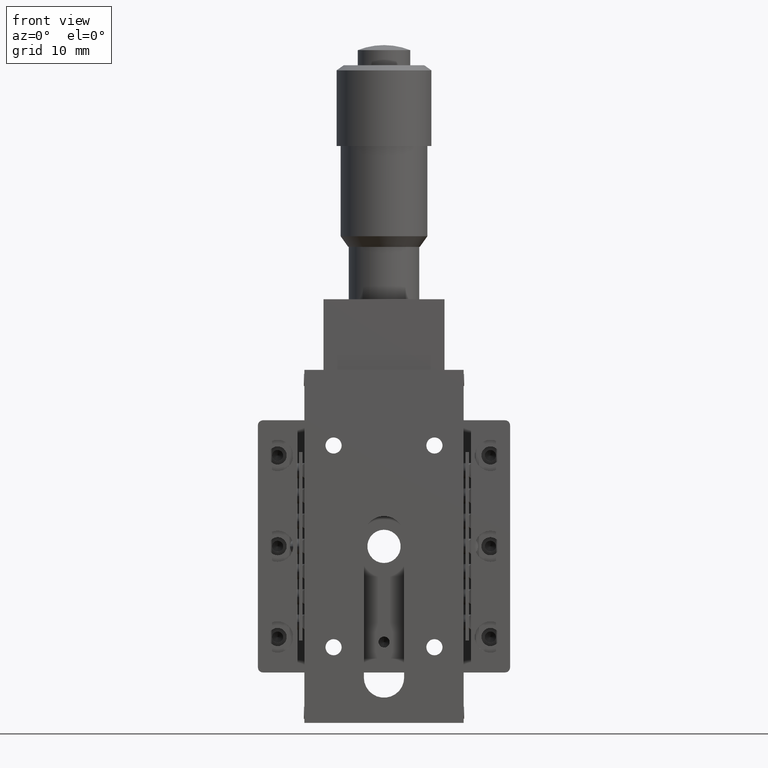
[diagram: clean part render]
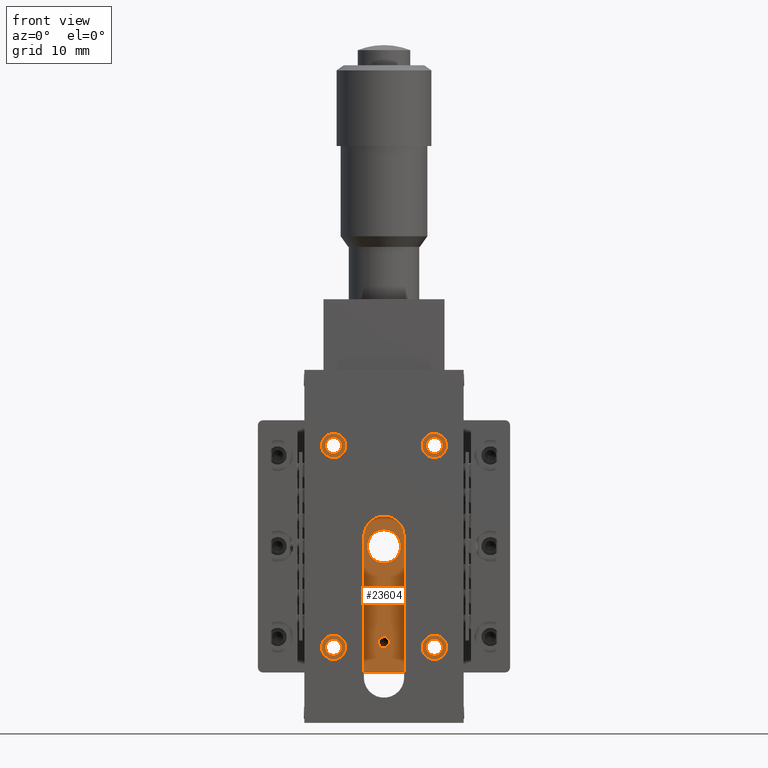
[diagram: same view with one face highlighted and labeled with its STEP entity id]
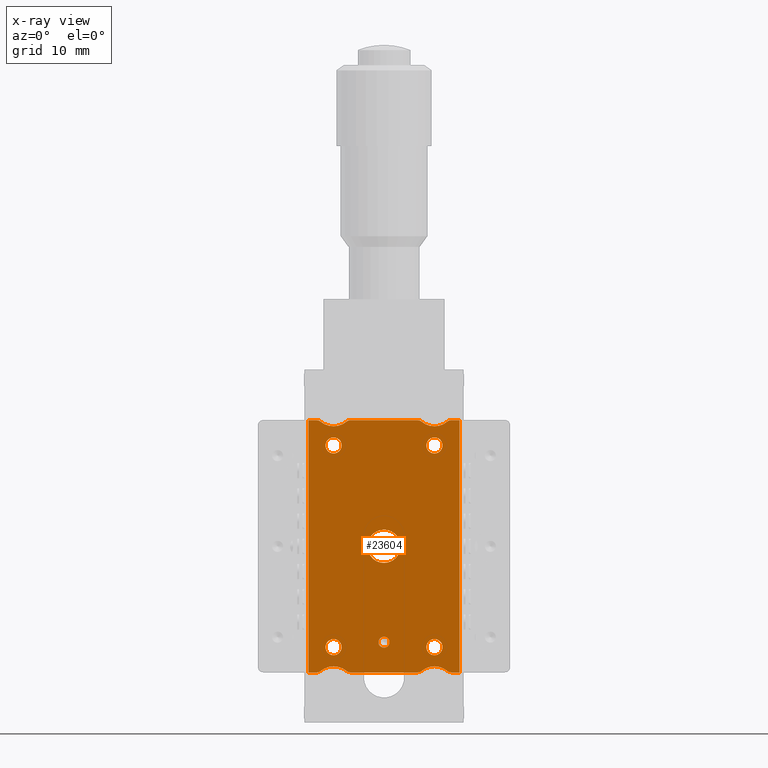
[diagram: x-ray of the same camera — body ghosted, the highlighted face saturated]
A machine part, front view. The second image highlights one B-rep face of the part: STEP entity #23604.
The next image is the same camera in x-ray: the body ghosted, the highlighted face saturated — about 0% of this face is hidden behind the body in this view.
In plain terms, the highlighted planar face has unit normal (-0, 1, 0).
Its self-contained STEP definition (entity closure, byte-faithful):
#22 = VERTEX_POINT ( 'NONE', #24181 ) ;
#49 = EDGE_CURVE ( 'NONE', #6690, #9090, #11106, .T. ) ;
#52 = DIRECTION ( 'NONE',  ( 6.812403650445844800E-018, -1.000000000000000000, -7.006492321624085400E-046 ) ) ;
#67 = DIRECTION ( 'NONE',  ( 1.000000000000000000, 0.0000000000000000000, 0.0000000000000000000 ) ) ;
#151 = CARTESIAN_POINT ( 'NONE',  ( 5.000000000000870400, 4.300000000000021100, -10.00000000000000000 ) ) ;
#404 = ORIENTED_EDGE ( 'NONE', *, *, #29183, .T. ) ;
#408 = CIRCLE ( 'NONE', #25599, 0.7999999999999933800 ) ;
#416 = VERTEX_POINT ( 'NONE', #444 ) ;
#444 = CARTESIAN_POINT ( 'NONE',  ( -7.499999999999129600, 4.300000000000021100, -12.50000000000000000 ) ) ;
#646 = CIRCLE ( 'NONE', #25027, 0.7999999999999933800 ) ;
#813 = ORIENTED_EDGE ( 'NONE', *, *, #14696, .T. ) ;
#849 = CARTESIAN_POINT ( 'NONE',  ( 8.668351572562253300E-013, 4.300000000000018500, -1.649999999999998100 ) ) ;
#1001 = VERTEX_POINT ( 'NONE', #29220 ) ;
#1017 = VECTOR ( 'NONE', #33290, 1000.000000000000000 ) ;
#1077 = LINE ( 'NONE', #5327, #12166 ) ;
#1141 = CARTESIAN_POINT ( 'NONE',  ( 6.624807680928059400, 4.300000000000021100, 12.50000000000000000 ) ) ;
#1350 = PLANE ( 'NONE',  #15833 ) ;
#1379 = EDGE_CURVE ( 'NONE', #14919, #13713, #27646, .T. ) ;
#1444 = VECTOR ( 'NONE', #5156, 1000.000000000000000 ) ;
#1618 = DIRECTION ( 'NONE',  ( -1.000000000000000000, 0.0000000000000000000, 0.0000000000000000000 ) ) ;
#1698 = VERTEX_POINT ( 'NONE', #24108 ) ;
#1723 = VERTEX_POINT ( 'NONE', #30539 ) ;
#1804 = ORIENTED_EDGE ( 'NONE', *, *, #12810, .T. ) ;
#1886 = EDGE_LOOP ( 'NONE', ( #18322, #17220 ) ) ;
#1904 = DIRECTION ( 'NONE',  ( 1.000000000000000000, 0.0000000000000000000, 0.0000000000000000000 ) ) ;
#1950 = EDGE_CURVE ( 'NONE', #1723, #26757, #27609, .T. ) ;
#1998 = AXIS2_PLACEMENT_3D ( 'NONE', #15124, #20478, #22932 ) ;
#2037 = CIRCLE ( 'NONE', #30269, 0.5000000000000000000 ) ;
#2616 = AXIS2_PLACEMENT_3D ( 'NONE', #22467, #9190, #6204 ) ;
#2690 = DIRECTION ( 'NONE',  ( 1.000000000000000000, 0.0000000000000000000, 0.0000000000000000000 ) ) ;
#2694 = AXIS2_PLACEMENT_3D ( 'NONE', #28945, #4245, #28614 ) ;
#2722 = CARTESIAN_POINT ( 'NONE',  ( -3.375192319071940600, 4.300000000000021100, 12.00000000000000000 ) ) ;
#2745 = EDGE_LOOP ( 'NONE', ( #14509, #30164 ) ) ;
#2777 = LINE ( 'NONE', #10962, #26567 ) ;
#2948 = CARTESIAN_POINT ( 'NONE',  ( 5.000000000000870400, 4.300000000000021100, 10.00000000000000000 ) ) ;
#3067 = AXIS2_PLACEMENT_3D ( 'NONE', #13649, #52, #2690 ) ;
#3420 = CARTESIAN_POINT ( 'NONE',  ( -4.999999999999130500, 4.300000000000021100, 10.79999999999999400 ) ) ;
#3421 = CARTESIAN_POINT ( 'NONE',  ( -7.499999999999129600, 4.300000000000021100, 12.50000000000000000 ) ) ;
#3568 = AXIS2_PLACEMENT_3D ( 'NONE', #2722, #32787, #8220 ) ;
#3687 = DIRECTION ( 'NONE',  ( 1.000000000000000000, 0.0000000000000000000, 0.0000000000000000000 ) ) ;
#3727 = DIRECTION ( 'NONE',  ( -6.812403650445846400E-018, 1.000000000000000000, 7.006492321624085400E-046 ) ) ;
#4138 = CARTESIAN_POINT ( 'NONE',  ( 5.000000000000870400, 4.300000000000021100, 10.00000000000000000 ) ) ;
#4241 = AXIS2_PLACEMENT_3D ( 'NONE', #34054, #31407, #17797 ) ;
#4245 = DIRECTION ( 'NONE',  ( -1.224606353822329900E-016, 1.000000000000000000, 7.006492321624085400E-046 ) ) ;
#4597 = CARTESIAN_POINT ( 'NONE',  ( -7.499999999999129600, 4.300000000000021100, -12.50000000000000000 ) ) ;
#4704 = ORIENTED_EDGE ( 'NONE', *, *, #6712, .T. ) ;
#4705 = AXIS2_PLACEMENT_3D ( 'NONE', #4138, #14626, #33604 ) ;
#4720 = DIRECTION ( 'NONE',  ( -1.000000000000000000, -6.812403650445846400E-018, 8.102884476381693800E-062 ) ) ;
#4721 = EDGE_CURVE ( 'NONE', #15354, #11852, #32963, .T. ) ;
#4772 = LINE ( 'NONE', #4597, #9876 ) ;
#4887 = EDGE_CURVE ( 'NONE', #34324, #14466, #646, .T. ) ;
#5093 = EDGE_CURVE ( 'NONE', #416, #15615, #2777, .T. ) ;
#5156 = DIRECTION ( 'NONE',  ( -1.000000000000000000, -6.812403650445846400E-018, 8.102884476381693800E-062 ) ) ;
#5327 = CARTESIAN_POINT ( 'NONE',  ( -7.499999999999129600, 4.300000000000021100, 12.50000000000000000 ) ) ;
#5351 = CIRCLE ( 'NONE', #25770, 0.7999999999999933800 ) ;
#5678 = CIRCLE ( 'NONE', #2616, 0.5500000000000001600 ) ;
#5694 = DIRECTION ( 'NONE',  ( -6.812403650445846400E-018, 1.000000000000000000, 7.006492321624085400E-046 ) ) ;
#5984 = CIRCLE ( 'NONE', #8377, 0.5500000000000001600 ) ;
#6017 = CARTESIAN_POINT ( 'NONE',  ( -3.700153855257381200, 4.300000000000021100, 12.37999999999999900 ) ) ;
#6080 = ORIENTED_EDGE ( 'NONE', *, *, #32942, .F. ) ;
#6204 = DIRECTION ( 'NONE',  ( 0.0000000000000000000, 0.0000000000000000000, 1.000000000000000000 ) ) ;
#6646 = DIRECTION ( 'NONE',  ( 1.000000000000000000, 0.0000000000000000000, 0.0000000000000000000 ) ) ;
#6690 = VERTEX_POINT ( 'NONE', #12490 ) ;
#6693 = DIRECTION ( 'NONE',  ( 6.812403650445846400E-018, -1.000000000000000000, -7.006492321624085400E-046 ) ) ;
#6712 = EDGE_CURVE ( 'NONE', #14466, #34324, #25551, .T. ) ;
#6775 = DIRECTION ( 'NONE',  ( 6.812403650445846400E-018, -1.000000000000000000, -7.006492321624085400E-046 ) ) ;
#6790 = CARTESIAN_POINT ( 'NONE',  ( 6.299846144742624600, 4.300000000000021100, 12.38000000000000100 ) ) ;
#7027 = EDGE_CURVE ( 'NONE', #17244, #21305, #408, .T. ) ;
#7368 = CARTESIAN_POINT ( 'NONE',  ( 5.000000000000869500, 4.300000000000021100, 13.89999999999999900 ) ) ;
#7603 = CARTESIAN_POINT ( 'NONE',  ( -4.999999999999123400, 4.300000000000021100, -10.00000000000000000 ) ) ;
#7826 = CARTESIAN_POINT ( 'NONE',  ( -4.999999999999130500, 4.300000000000021100, -10.79999999999999400 ) ) ;
#7880 = CARTESIAN_POINT ( 'NONE',  ( -7.499999999999129600, 4.300000000000021100, 12.50000000000000000 ) ) ;
#8220 = DIRECTION ( 'NONE',  ( 1.000000000000000000, 0.0000000000000000000, 0.0000000000000000000 ) ) ;
#8377 = AXIS2_PLACEMENT_3D ( 'NONE', #35070, #10594, #26970 ) ;
#8746 = FACE_OUTER_BOUND ( 'NONE', #9017, .T. ) ;
#9017 = EDGE_LOOP ( 'NONE', ( #6080, #404, #24154, #17919, #26206, #21950, #13528, #12252, #26246, #11017, #21286, #34145, #1804, #17992, #26923, #9395, #16943, #813, #34624, #9583 ) ) ;
#9090 = VERTEX_POINT ( 'NONE', #6017 ) ;
#9158 = LINE ( 'NONE', #17391, #1017 ) ;
#9190 = DIRECTION ( 'NONE',  ( 1.224606353822329900E-016, -1.000000000000000000, -7.006492321624085400E-046 ) ) ;
#9309 = AXIS2_PLACEMENT_3D ( 'NONE', #151, #22047, #16748 ) ;
#9395 = ORIENTED_EDGE ( 'NONE', *, *, #12130, .T. ) ;
#9410 = CARTESIAN_POINT ( 'NONE',  ( 3.375192319073669900, 4.300000000000021100, 12.00000000000000000 ) ) ;
#9467 = VERTEX_POINT ( 'NONE', #17062 ) ;
#9583 = ORIENTED_EDGE ( 'NONE', *, *, #31018, .T. ) ;
#9725 = CARTESIAN_POINT ( 'NONE',  ( 3.375192319073673500, 4.300000000000021100, -12.00000000000000000 ) ) ;
#9876 = VECTOR ( 'NONE', #4720, 1000.000000000000000 ) ;
#10043 = DIRECTION ( 'NONE',  ( -6.812403650445846400E-018, 1.000000000000000000, 7.006492321624085400E-046 ) ) ;
#10185 = DIRECTION ( 'NONE',  ( -6.812403650445846400E-018, 1.000000000000000000, 7.006492321624085400E-046 ) ) ;
#10239 = VERTEX_POINT ( 'NONE', #26885 ) ;
#10434 = FACE_BOUND ( 'NONE', #17909, .T. ) ;
#10451 = AXIS2_PLACEMENT_3D ( 'NONE', #22939, #6693, #25669 ) ;
#10594 = DIRECTION ( 'NONE',  ( 1.224606353822329900E-016, -1.000000000000000000, -7.006492321624085400E-046 ) ) ;
#10962 = CARTESIAN_POINT ( 'NONE',  ( -7.499999999999129600, 4.300000000000021100, -12.50000000000000000 ) ) ;
#11017 = ORIENTED_EDGE ( 'NONE', *, *, #27463, .T. ) ;
#11106 = CIRCLE ( 'NONE', #3067, 2.000000000000000400 ) ;
#11211 = CIRCLE ( 'NONE', #2694, 1.649999999999998100 ) ;
#11258 = CARTESIAN_POINT ( 'NONE',  ( -6.624807680926319400, 4.300000000000021100, -12.00000000000000000 ) ) ;
#11451 = EDGE_CURVE ( 'NONE', #26757, #1001, #1077, .T. ) ;
#11532 = CARTESIAN_POINT ( 'NONE',  ( 8.684184128021710800E-013, 4.300000000000021100, -10.04999999999999900 ) ) ;
#11850 = EDGE_CURVE ( 'NONE', #14323, #22, #15558, .T. ) ;
#11852 = VERTEX_POINT ( 'NONE', #14664 ) ;
#12002 = VECTOR ( 'NONE', #29292, 1000.000000000000000 ) ;
#12104 = DIRECTION ( 'NONE',  ( 1.000000000000000000, 6.812403650445844800E-018, -8.102884476381695500E-062 ) ) ;
#12130 = EDGE_CURVE ( 'NONE', #15725, #22, #24860, .T. ) ;
#12166 = VECTOR ( 'NONE', #29669, 1000.000000000000000 ) ;
#12252 = ORIENTED_EDGE ( 'NONE', *, *, #1950, .T. ) ;
#12326 = DIRECTION ( 'NONE',  ( 1.000000000000000000, 0.0000000000000000000, 0.0000000000000000000 ) ) ;
#12353 = CARTESIAN_POINT ( 'NONE',  ( 8.663820462318324000E-013, 4.300000000000018500, 1.649999999999998400 ) ) ;
#12490 = CARTESIAN_POINT ( 'NONE',  ( -6.299846144740887300, 4.300000000000021100, 12.37999999999999900 ) ) ;
#12567 = EDGE_CURVE ( 'NONE', #15354, #26318, #34226, .T. ) ;
#12747 = CARTESIAN_POINT ( 'NONE',  ( -4.999999999999130500, 4.300000000000021100, 9.200000000000006400 ) ) ;
#12810 = EDGE_CURVE ( 'NONE', #1698, #15615, #9158, .T. ) ;
#12849 = LINE ( 'NONE', #23678, #12002 ) ;
#12864 = EDGE_CURVE ( 'NONE', #27866, #30324, #14673, .T. ) ;
#12965 = EDGE_LOOP ( 'NONE', ( #28830, #30304 ) ) ;
#13401 = LINE ( 'NONE', #3421, #29139 ) ;
#13523 = CIRCLE ( 'NONE', #23894, 0.7999999999999933800 ) ;
#13528 = ORIENTED_EDGE ( 'NONE', *, *, #30727, .F. ) ;
#13581 = CARTESIAN_POINT ( 'NONE',  ( -7.499999999999129600, 4.300000000000021100, -12.50000000000000000 ) ) ;
#13582 = AXIS2_PLACEMENT_3D ( 'NONE', #34749, #20643, #26067 ) ;
#13649 = CARTESIAN_POINT ( 'NONE',  ( -4.999999999999131400, 4.300000000000021100, 13.89999999999999700 ) ) ;
#13713 = VERTEX_POINT ( 'NONE', #6790 ) ;
#13992 = CARTESIAN_POINT ( 'NONE',  ( 7.500000000000871300, 4.300000000000021100, -12.50000000000000000 ) ) ;
#14078 = CIRCLE ( 'NONE', #26122, 0.7999999999999933800 ) ;
#14319 = CARTESIAN_POINT ( 'NONE',  ( 5.000000000000863300, 4.300000000000021100, -9.200000000000006400 ) ) ;
#14323 = VERTEX_POINT ( 'NONE', #28920 ) ;
#14466 = VERTEX_POINT ( 'NONE', #27610 ) ;
#14509 = ORIENTED_EDGE ( 'NONE', *, *, #17534, .T. ) ;
#14626 = DIRECTION ( 'NONE',  ( -6.812403650445846400E-018, 1.000000000000000000, 7.006492321624085400E-046 ) ) ;
#14664 = CARTESIAN_POINT ( 'NONE',  ( 7.500000000000871300, 4.300000000000021100, 12.50000000000000000 ) ) ;
#14673 = CIRCLE ( 'NONE', #25485, 1.649999999999998100 ) ;
#14696 = EDGE_CURVE ( 'NONE', #14323, #20243, #16781, .T. ) ;
#14714 = FACE_BOUND ( 'NONE', #33949, .T. ) ;
#14731 = AXIS2_PLACEMENT_3D ( 'NONE', #20273, #25798, #1904 ) ;
#14734 = DIRECTION ( 'NONE',  ( -6.812403650445844800E-018, 1.000000000000000000, 7.006492321624085400E-046 ) ) ;
#14919 = VERTEX_POINT ( 'NONE', #1141 ) ;
#15124 = CARTESIAN_POINT ( 'NONE',  ( -4.999999999999127800, 4.300000000000021100, -13.90000000000000000 ) ) ;
#15183 = CARTESIAN_POINT ( 'NONE',  ( -4.999999999999123400, 4.300000000000021100, 10.00000000000000000 ) ) ;
#15354 = VERTEX_POINT ( 'NONE', #13992 ) ;
#15558 = CIRCLE ( 'NONE', #1998, 2.000000000000000900 ) ;
#15615 = VERTEX_POINT ( 'NONE', #7880 ) ;
#15725 = VERTEX_POINT ( 'NONE', #18832 ) ;
#15833 = AXIS2_PLACEMENT_3D ( 'NONE', #28275, #14734, #12104 ) ;
#15891 = EDGE_CURVE ( 'NONE', #20111, #24451, #23650, .T. ) ;
#15912 = DIRECTION ( 'NONE',  ( 1.000000000000000000, 0.0000000000000000000, -3.469446951953614200E-015 ) ) ;
#15945 = EDGE_CURVE ( 'NONE', #9467, #20243, #4772, .T. ) ;
#16093 = DIRECTION ( 'NONE',  ( -7.507670638184694700E-062, 6.130680781421074700E-046, 1.000000000000000000 ) ) ;
#16542 = AXIS2_PLACEMENT_3D ( 'NONE', #7603, #34564, #31581 ) ;
#16652 = DIRECTION ( 'NONE',  ( -1.000000000000000000, -6.812403650445846400E-018, 8.102884476381693800E-062 ) ) ;
#16748 = DIRECTION ( 'NONE',  ( 1.000000000000000000, 0.0000000000000000000, 0.0000000000000000000 ) ) ;
#16781 = CIRCLE ( 'NONE', #21632, 0.5000000000000000000 ) ;
#16943 = ORIENTED_EDGE ( 'NONE', *, *, #11850, .F. ) ;
#17062 = CARTESIAN_POINT ( 'NONE',  ( 3.375192319073669000, 4.300000000000021100, -12.50000000000000000 ) ) ;
#17065 = CIRCLE ( 'NONE', #10451, 0.5000000000000004400 ) ;
#17108 = AXIS2_PLACEMENT_3D ( 'NONE', #11258, #18987, #27282 ) ;
#17200 = EDGE_CURVE ( 'NONE', #24451, #20111, #14078, .T. ) ;
#17220 = ORIENTED_EDGE ( 'NONE', *, *, #7027, .T. ) ;
#17244 = VERTEX_POINT ( 'NONE', #3420 ) ;
#17391 = CARTESIAN_POINT ( 'NONE',  ( -7.499999999999129600, 4.300000000000021100, 12.50000000000000000 ) ) ;
#17509 = EDGE_LOOP ( 'NONE', ( #33903, #28251 ) ) ;
#17534 = EDGE_CURVE ( 'NONE', #10239, #21981, #34888, .T. ) ;
#17548 = CARTESIAN_POINT ( 'NONE',  ( 7.500000000000871300, 4.300000000000021100, -12.50000000000000000 ) ) ;
#17694 = CIRCLE ( 'NONE', #4241, 2.000000000000000000 ) ;
#17797 = DIRECTION ( 'NONE',  ( 1.000000000000000000, 0.0000000000000000000, 0.0000000000000000000 ) ) ;
#17909 = EDGE_LOOP ( 'NONE', ( #19725, #4704 ) ) ;
#17919 = ORIENTED_EDGE ( 'NONE', *, *, #4721, .T. ) ;
#17992 = ORIENTED_EDGE ( 'NONE', *, *, #5093, .F. ) ;
#18322 = ORIENTED_EDGE ( 'NONE', *, *, #22798, .T. ) ;
#18348 = CIRCLE ( 'NONE', #3568, 0.5000000000000000000 ) ;
#18475 = CARTESIAN_POINT ( 'NONE',  ( -4.999999999999123400, 4.300000000000021100, -10.00000000000000000 ) ) ;
#18552 = DIRECTION ( 'NONE',  ( 0.0000000000000000000, 0.0000000000000000000, -1.000000000000000000 ) ) ;
#18702 = DIRECTION ( 'NONE',  ( 1.000000000000000000, 0.0000000000000000000, 0.0000000000000000000 ) ) ;
#18832 = CARTESIAN_POINT ( 'NONE',  ( -6.624807680926319400, 4.300000000000021100, -12.50000000000000000 ) ) ;
#18987 = DIRECTION ( 'NONE',  ( 6.812403650445846400E-018, -1.000000000000000000, -7.006492321624085400E-046 ) ) ;
#19435 = ORIENTED_EDGE ( 'NONE', *, *, #25107, .F. ) ;
#19568 = EDGE_CURVE ( 'NONE', #21981, #10239, #13523, .T. ) ;
#19725 = ORIENTED_EDGE ( 'NONE', *, *, #4887, .T. ) ;
#19810 = DIRECTION ( 'NONE',  ( -7.507670638184694700E-062, 6.130680781421074700E-046, 1.000000000000000000 ) ) ;
#19867 = CARTESIAN_POINT ( 'NONE',  ( 6.624807680928062900, 4.300000000000021100, -12.50000000000000000 ) ) ;
#20031 = CARTESIAN_POINT ( 'NONE',  ( -4.999999999999123400, 4.300000000000021100, 10.00000000000000000 ) ) ;
#20111 = VERTEX_POINT ( 'NONE', #21426 ) ;
#20243 = VERTEX_POINT ( 'NONE', #23019 ) ;
#20273 = CARTESIAN_POINT ( 'NONE',  ( -6.624807680926327400, 4.300000000000021100, 12.00000000000000000 ) ) ;
#20400 = VERTEX_POINT ( 'NONE', #26925 ) ;
#20442 = CARTESIAN_POINT ( 'NONE',  ( 8.686878284245049800E-013, 4.300000000000021100, -8.949999999999997500 ) ) ;
#20478 = DIRECTION ( 'NONE',  ( 6.812403650445844800E-018, -1.000000000000000000, -7.006492321624085400E-046 ) ) ;
#20643 = DIRECTION ( 'NONE',  ( 6.812403650445846400E-018, -1.000000000000000000, -7.006492321624085400E-046 ) ) ;
#20892 = VERTEX_POINT ( 'NONE', #21068 ) ;
#21068 = CARTESIAN_POINT ( 'NONE',  ( 6.299846144742628200, 4.300000000000021100, -12.38000000000000100 ) ) ;
#21169 = CIRCLE ( 'NONE', #30049, 2.000000000000000000 ) ;
#21286 = ORIENTED_EDGE ( 'NONE', *, *, #49, .F. ) ;
#21305 = VERTEX_POINT ( 'NONE', #12747 ) ;
#21426 = CARTESIAN_POINT ( 'NONE',  ( 5.000000000000863300, 4.300000000000021100, 10.79999999999999400 ) ) ;
#21632 = AXIS2_PLACEMENT_3D ( 'NONE', #27039, #34765, #15912 ) ;
#21950 = ORIENTED_EDGE ( 'NONE', *, *, #1379, .T. ) ;
#21981 = VERTEX_POINT ( 'NONE', #14319 ) ;
#22047 = DIRECTION ( 'NONE',  ( -6.812403650445846400E-018, 1.000000000000000000, 7.006492321624085400E-046 ) ) ;
#22340 = CIRCLE ( 'NONE', #14731, 0.5000000000000004400 ) ;
#22467 = CARTESIAN_POINT ( 'NONE',  ( 8.686878284245049800E-013, 4.300000000000021100, -9.499999999999998200 ) ) ;
#22798 = EDGE_CURVE ( 'NONE', #21305, #17244, #5351, .T. ) ;
#22932 = DIRECTION ( 'NONE',  ( -1.000000000000000000, 0.0000000000000000000, 0.0000000000000000000 ) ) ;
#22939 = CARTESIAN_POINT ( 'NONE',  ( 6.624807680928065600, 4.300000000000021100, -12.00000000000000000 ) ) ;
#23019 = CARTESIAN_POINT ( 'NONE',  ( -3.375192319071943700, 4.300000000000021100, -12.50000000000000000 ) ) ;
#23531 = EDGE_CURVE ( 'NONE', #11852, #14919, #13401, .T. ) ;
#23604 = ADVANCED_FACE ( 'NONE', ( #34228, #25709, #10434, #31232, #30401, #14714, #8746 ), #1350, .F. ) ;
#23650 = CIRCLE ( 'NONE', #4705, 0.7999999999999933800 ) ;
#23678 = CARTESIAN_POINT ( 'NONE',  ( -7.499999999999129600, 4.300000000000021100, -12.50000000000000000 ) ) ;
#23894 = AXIS2_PLACEMENT_3D ( 'NONE', #26212, #34554, #6646 ) ;
#24108 = CARTESIAN_POINT ( 'NONE',  ( -6.624807680926327400, 4.300000000000021100, 12.50000000000000000 ) ) ;
#24154 = ORIENTED_EDGE ( 'NONE', *, *, #12567, .F. ) ;
#24181 = CARTESIAN_POINT ( 'NONE',  ( -6.299846144740881100, 4.300000000000021100, -12.38000000000000100 ) ) ;
#24244 = VERTEX_POINT ( 'NONE', #11532 ) ;
#24367 = VERTEX_POINT ( 'NONE', #20442 ) ;
#24451 = VERTEX_POINT ( 'NONE', #34643 ) ;
#24860 = CIRCLE ( 'NONE', #17108, 0.4999999999999995600 ) ;
#25027 = AXIS2_PLACEMENT_3D ( 'NONE', #18475, #10043, #18702 ) ;
#25107 = EDGE_CURVE ( 'NONE', #24367, #24244, #5678, .T. ) ;
#25446 = DIRECTION ( 'NONE',  ( 1.000000000000000000, 0.0000000000000000000, 0.0000000000000000000 ) ) ;
#25485 = AXIS2_PLACEMENT_3D ( 'NONE', #26341, #26463, #18552 ) ;
#25490 = DIRECTION ( 'NONE',  ( 1.000000000000000000, 0.0000000000000000000, -3.469446951953614200E-015 ) ) ;
#25551 = CIRCLE ( 'NONE', #16542, 0.7999999999999933800 ) ;
#25599 = AXIS2_PLACEMENT_3D ( 'NONE', #20031, #3727, #25446 ) ;
#25669 = DIRECTION ( 'NONE',  ( 1.000000000000000000, 0.0000000000000000000, 0.0000000000000000000 ) ) ;
#25709 = FACE_BOUND ( 'NONE', #2745, .T. ) ;
#25724 = VECTOR ( 'NONE', #19810, 1000.000000000000000 ) ;
#25770 = AXIS2_PLACEMENT_3D ( 'NONE', #15183, #10185, #12326 ) ;
#25798 = DIRECTION ( 'NONE',  ( 6.812403650445846400E-018, -1.000000000000000000, -7.006492321624085400E-046 ) ) ;
#26067 = DIRECTION ( 'NONE',  ( 1.000000000000000000, 0.0000000000000000000, 0.0000000000000000000 ) ) ;
#26122 = AXIS2_PLACEMENT_3D ( 'NONE', #2948, #5694, #67 ) ;
#26206 = ORIENTED_EDGE ( 'NONE', *, *, #23531, .T. ) ;
#26212 = CARTESIAN_POINT ( 'NONE',  ( 5.000000000000870400, 4.300000000000021100, -10.00000000000000000 ) ) ;
#26246 = ORIENTED_EDGE ( 'NONE', *, *, #11451, .T. ) ;
#26318 = VERTEX_POINT ( 'NONE', #19867 ) ;
#26341 = CARTESIAN_POINT ( 'NONE',  ( 8.668351572562253300E-013, 4.300000000000018500, -7.244863524839539800E-017 ) ) ;
#26463 = DIRECTION ( 'NONE',  ( -1.224606353822329900E-016, 1.000000000000000000, 7.006492321624085400E-046 ) ) ;
#26567 = VECTOR ( 'NONE', #16093, 1000.000000000000000 ) ;
#26757 = VERTEX_POINT ( 'NONE', #33707 ) ;
#26885 = CARTESIAN_POINT ( 'NONE',  ( 5.000000000000863300, 4.300000000000021100, -10.79999999999999400 ) ) ;
#26923 = ORIENTED_EDGE ( 'NONE', *, *, #27008, .F. ) ;
#26925 = CARTESIAN_POINT ( 'NONE',  ( 3.700153855259111800, 4.300000000000021100, -12.38000000000000100 ) ) ;
#26970 = DIRECTION ( 'NONE',  ( 0.0000000000000000000, 0.0000000000000000000, 1.000000000000000000 ) ) ;
#27008 = EDGE_CURVE ( 'NONE', #15725, #416, #12849, .T. ) ;
#27039 = CARTESIAN_POINT ( 'NONE',  ( -3.375192319071941500, 4.300000000000021100, -12.00000000000000000 ) ) ;
#27282 = DIRECTION ( 'NONE',  ( 1.000000000000000000, 0.0000000000000000000, -3.469446951953617300E-015 ) ) ;
#27429 = EDGE_CURVE ( 'NONE', #24244, #24367, #5984, .T. ) ;
#27463 = EDGE_CURVE ( 'NONE', #1001, #9090, #18348, .T. ) ;
#27609 = CIRCLE ( 'NONE', #28826, 0.5000000000000000000 ) ;
#27610 = CARTESIAN_POINT ( 'NONE',  ( -4.999999999999130500, 4.300000000000021100, -9.200000000000006400 ) ) ;
#27646 = CIRCLE ( 'NONE', #13582, 0.5000000000000004400 ) ;
#27866 = VERTEX_POINT ( 'NONE', #12353 ) ;
#28251 = ORIENTED_EDGE ( 'NONE', *, *, #12864, .T. ) ;
#28275 = CARTESIAN_POINT ( 'NONE',  ( -7.499999999999129600, 4.300000000000021100, -12.50000000000000000 ) ) ;
#28614 = DIRECTION ( 'NONE',  ( 0.0000000000000000000, 0.0000000000000000000, -1.000000000000000000 ) ) ;
#28714 = DIRECTION ( 'NONE',  ( 6.812403650445846400E-018, -1.000000000000000000, -7.006492321624085400E-046 ) ) ;
#28826 = AXIS2_PLACEMENT_3D ( 'NONE', #9410, #6775, #3687 ) ;
#28830 = ORIENTED_EDGE ( 'NONE', *, *, #17200, .T. ) ;
#28920 = CARTESIAN_POINT ( 'NONE',  ( -3.700153855257379800, 4.300000000000021100, -12.38000000000000100 ) ) ;
#28945 = CARTESIAN_POINT ( 'NONE',  ( 8.668351572562253300E-013, 4.300000000000018500, -7.244863524839539800E-017 ) ) ;
#29139 = VECTOR ( 'NONE', #16652, 1000.000000000000000 ) ;
#29183 = EDGE_CURVE ( 'NONE', #20892, #26318, #17065, .T. ) ;
#29220 = CARTESIAN_POINT ( 'NONE',  ( -3.375192319071941900, 4.300000000000021100, 12.50000000000000000 ) ) ;
#29292 = DIRECTION ( 'NONE',  ( -1.000000000000000000, -6.812403650445846400E-018, 8.102884476381693800E-062 ) ) ;
#29669 = DIRECTION ( 'NONE',  ( -1.000000000000000000, -6.812403650445846400E-018, 8.102884476381693800E-062 ) ) ;
#30049 = AXIS2_PLACEMENT_3D ( 'NONE', #7368, #34225, #1618 ) ;
#30164 = ORIENTED_EDGE ( 'NONE', *, *, #19568, .T. ) ;
#30269 = AXIS2_PLACEMENT_3D ( 'NONE', #9725, #28714, #25490 ) ;
#30304 = ORIENTED_EDGE ( 'NONE', *, *, #15891, .T. ) ;
#30324 = VERTEX_POINT ( 'NONE', #849 ) ;
#30401 = FACE_BOUND ( 'NONE', #12965, .T. ) ;
#30539 = CARTESIAN_POINT ( 'NONE',  ( 3.700153855259108200, 4.300000000000021100, 12.38000000000000100 ) ) ;
#30727 = EDGE_CURVE ( 'NONE', #1723, #13713, #21169, .T. ) ;
#31018 = EDGE_CURVE ( 'NONE', #9467, #20400, #2037, .T. ) ;
#31232 = FACE_BOUND ( 'NONE', #1886, .T. ) ;
#31395 = ORIENTED_EDGE ( 'NONE', *, *, #27429, .F. ) ;
#31407 = DIRECTION ( 'NONE',  ( 6.812403650445844800E-018, -1.000000000000000000, -7.006492321624085400E-046 ) ) ;
#31581 = DIRECTION ( 'NONE',  ( 1.000000000000000000, 0.0000000000000000000, 0.0000000000000000000 ) ) ;
#32787 = DIRECTION ( 'NONE',  ( 6.812403650445846400E-018, -1.000000000000000000, -7.006492321624085400E-046 ) ) ;
#32942 = EDGE_CURVE ( 'NONE', #20892, #20400, #17694, .T. ) ;
#32963 = LINE ( 'NONE', #17548, #25724 ) ;
#33290 = DIRECTION ( 'NONE',  ( -1.000000000000000000, -6.812403650445846400E-018, 8.102884476381693800E-062 ) ) ;
#33604 = DIRECTION ( 'NONE',  ( 1.000000000000000000, 0.0000000000000000000, 0.0000000000000000000 ) ) ;
#33707 = CARTESIAN_POINT ( 'NONE',  ( 3.375192319073665500, 4.300000000000021100, 12.50000000000000000 ) ) ;
#33726 = EDGE_CURVE ( 'NONE', #6690, #1698, #22340, .T. ) ;
#33903 = ORIENTED_EDGE ( 'NONE', *, *, #35325, .T. ) ;
#33949 = EDGE_LOOP ( 'NONE', ( #19435, #31395 ) ) ;
#34054 = CARTESIAN_POINT ( 'NONE',  ( 5.000000000000873100, 4.300000000000021100, -13.89999999999999900 ) ) ;
#34145 = ORIENTED_EDGE ( 'NONE', *, *, #33726, .T. ) ;
#34225 = DIRECTION ( 'NONE',  ( 6.812403650445844800E-018, -1.000000000000000000, -7.006492321624085400E-046 ) ) ;
#34226 = LINE ( 'NONE', #13581, #1444 ) ;
#34228 = FACE_BOUND ( 'NONE', #17509, .T. ) ;
#34324 = VERTEX_POINT ( 'NONE', #7826 ) ;
#34554 = DIRECTION ( 'NONE',  ( -6.812403650445846400E-018, 1.000000000000000000, 7.006492321624085400E-046 ) ) ;
#34564 = DIRECTION ( 'NONE',  ( -6.812403650445846400E-018, 1.000000000000000000, 7.006492321624085400E-046 ) ) ;
#34624 = ORIENTED_EDGE ( 'NONE', *, *, #15945, .F. ) ;
#34643 = CARTESIAN_POINT ( 'NONE',  ( 5.000000000000863300, 4.300000000000021100, 9.200000000000006400 ) ) ;
#34749 = CARTESIAN_POINT ( 'NONE',  ( 6.624807680928062000, 4.300000000000021100, 12.00000000000000000 ) ) ;
#34765 = DIRECTION ( 'NONE',  ( 6.812403650445846400E-018, -1.000000000000000000, -7.006492321624085400E-046 ) ) ;
#34888 = CIRCLE ( 'NONE', #9309, 0.7999999999999933800 ) ;
#35070 = CARTESIAN_POINT ( 'NONE',  ( 8.686878284245049800E-013, 4.300000000000021100, -9.499999999999998200 ) ) ;
#35325 = EDGE_CURVE ( 'NONE', #30324, #27866, #11211, .T. ) ;